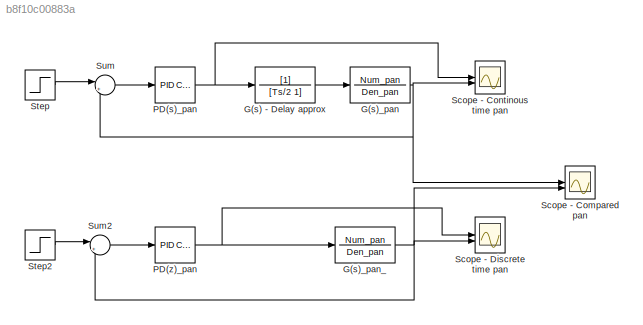
MODEL slx_b8f10c00883a
KIND model
CONFIG AbsTol = auto
CONFIG EnableMultiTasking = off
CONFIG FixedStep = auto
CONFIG MaxStep = auto
CONFIG MinStep = auto
CONFIG RelTol = 1e-3
CONFIG SampleTimeConstraint = Unconstrained
CONFIG SolverName = VariableStepAuto
CONFIG StartTime = 0.0
CONFIG StopTime = 1
BLOCK [TransferFcn] G(s) - Delay approx
  Denominator = [Ts/2 1]
BLOCK [TransferFcn] G(s)_pan
  Denominator = Den_pan
  Numerator = Num_pan
BLOCK [TransferFcn] G(s)_pan_
  Denominator = Den_pan
  Numerator = Num_pan
BLOCK [Reference] PD(s)_pan  REF=slpidlib/PID Controller
  LibrarySourceBlock = simulink/Continuous/PID Controller
  SourceBlock = slpidlib/PID Controller
  SourceType = PID 1dof
BLOCK [Reference] PD(z)_pan  REF=slpidlib/PID Controller
  LibrarySourceBlock = simulink/Continuous/PID Controller
  SourceBlock = slpidlib/PID Controller
  SourceType = PID 1dof
BLOCK [Scope] Scope - Compared pan
  Floating = off
  NumInputPorts = 2
  ScopeSpecificationString = Simulink.scopes.TimeScopeBlockCfg('CurrentConfiguration', extmgr.ConfigurationSet(extmgr.Configuration('Core','General UI',true),extmgr.Configuration('Core','Source UI',true),extmgr.Configuration('Sources','WiredSimulink',true,'DataLoggingVariableName','ScopeData1'),extmgr.Configuration('Visuals','Time Domain',true,'SerializedDisplays',{struct('MinYLimReal','-0.125','MaxYLimReal','1.125','YLabelRe...<+1480ch>
BLOCK [Scope] Scope - Continous time pan
  Floating = off
  NumInputPorts = 2
  ScopeSpecificationString = Simulink.scopes.TimeScopeBlockCfg('CurrentConfiguration', extmgr.ConfigurationSet(extmgr.Configuration('Core','General UI',true),extmgr.Configuration('Core','Source UI',true),extmgr.Configuration('Sources','WiredSimulink',true,'DataLoggingVariableName','ScopeData2'),extmgr.Configuration('Visuals','Time Domain',true,'SerializedDisplays',{struct('MinYLimReal','-1.5','MaxYLimReal','13.5','YLabelReal'...<+1476ch>
BLOCK [Scope] Scope - Discrete time pan
  Floating = off
  NumInputPorts = 2
  ScopeSpecificationString = Simulink.scopes.TimeScopeBlockCfg('CurrentConfiguration', extmgr.ConfigurationSet(extmgr.Configuration('Core','General UI',true),extmgr.Configuration('Core','Source UI',true),extmgr.Configuration('Sources','WiredSimulink',true,'DataLoggingVariableName','ScopeData2'),extmgr.Configuration('Visuals','Time Domain',true,'SerializedDisplays',{struct('MinYLimReal','-1.5292','MaxYLimReal','13.50324','YLab...<+1492ch>
BLOCK [Step] Step
  SampleTime = 0
  Time = 0
BLOCK [Step] Step2
  SampleTime = 0
  Time = 0
BLOCK [Sum] Sum
  Inputs = |+-
BLOCK [Sum] Sum2
  Inputs = |+-
LINE G(s) - Delay approx:1 -> G(s)_pan:1
NET G(s)_pan:1 -> Scope - Compared pan:1, Scope - Continous time pan:2, Sum:2
NET G(s)_pan_:1 -> Scope - Compared pan:2, Scope - Discrete time pan:2, Sum2:2
NET PD(s)_pan:1 -> G(s) - Delay approx:1, Scope - Continous time pan:1
NET PD(z)_pan:1 -> G(s)_pan_:1, Scope - Discrete time pan:1
LINE Step2:1 -> Sum2:1
LINE Step:1 -> Sum:1
LINE Sum2:1 -> PD(z)_pan:1
LINE Sum:1 -> PD(s)_pan:1
note: NET lines group one-source signal fan-out (src -> all destinations, sorted); 1:1 wires keep LINE
